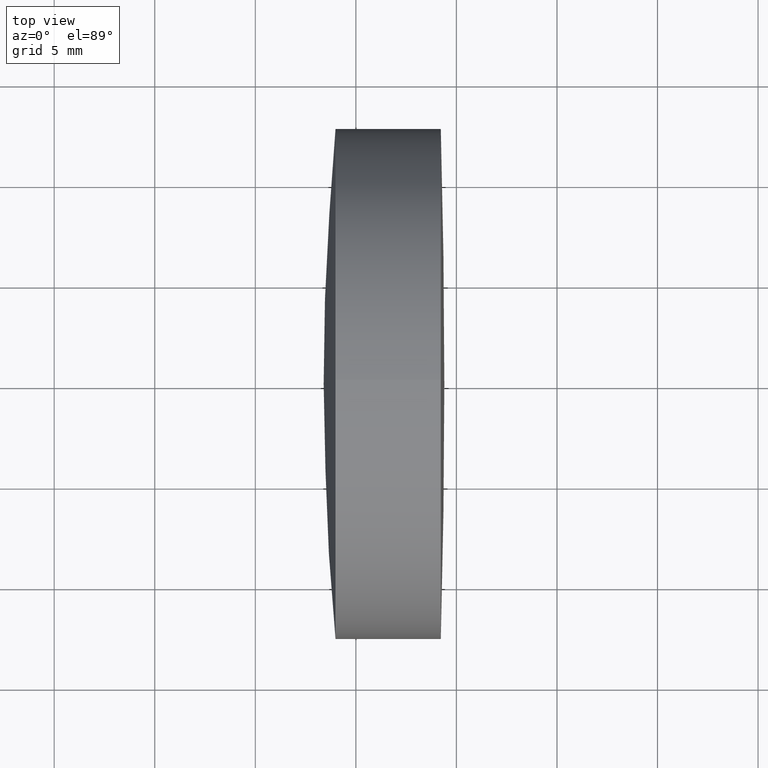
[diagram: clean part render]
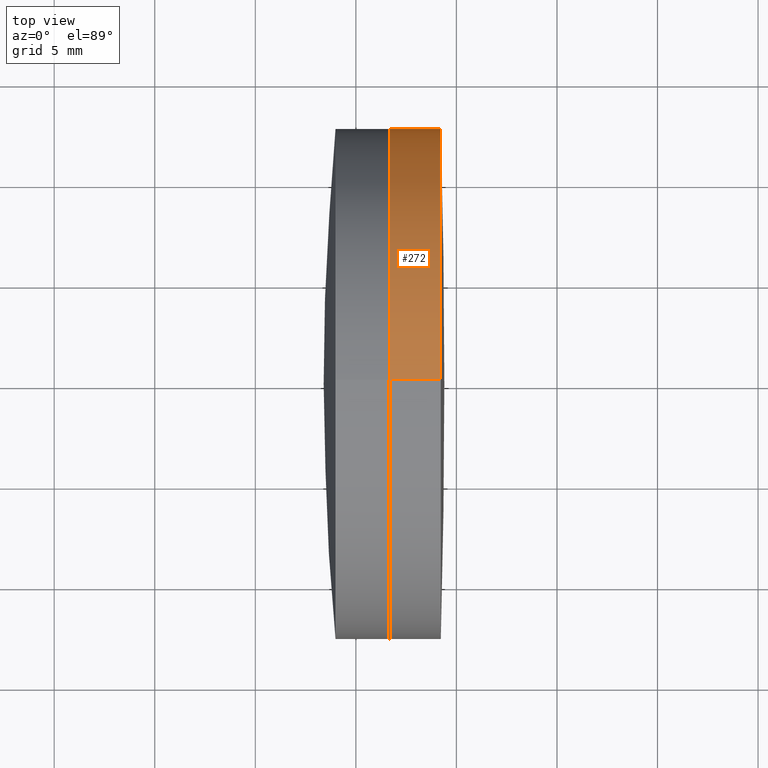
[diagram: same view with one face highlighted and labeled with its STEP entity id]
A machine part, top view. The second image highlights one B-rep face of the part: STEP entity #272.
In plain terms, the highlighted cylindrical surface (partial cylindrical patch) has radius 12.7 mm, axis along (-1, -0, -0).
Its self-contained STEP definition (entity closure, byte-faithful):
#25 = VECTOR ( 'NONE', #318, 1000.000000000000000 ) ;
#37 = DIRECTION ( 'NONE',  ( -1.000000000000000000, -0.0000000000000000000, -0.0000000000000000000 ) ) ;
#39 = AXIS2_PLACEMENT_3D ( 'NONE', #131, #320, #42 ) ;
#42 = DIRECTION ( 'NONE',  ( 0.0000000000000000000, 0.0000000000000000000, 1.000000000000000000 ) ) ;
#48 = ORIENTED_EDGE ( 'NONE', *, *, #52, .T. ) ;
#52 = EDGE_CURVE ( 'NONE', #158, #199, #299, .T. ) ;
#75 = CARTESIAN_POINT ( 'NONE',  ( 291.6738128087178000, 0.0000000000000000000, 12.69999999999998700 ) ) ;
#92 = VERTEX_POINT ( 'NONE', #108 ) ;
#93 = LINE ( 'NONE', #344, #25 ) ;
#99 = DIRECTION ( 'NONE',  ( 0.0000000000000000000, 0.0000000000000000000, 1.000000000000000000 ) ) ;
#108 = CARTESIAN_POINT ( 'NONE',  ( 294.2237933026709700, 0.0000000000000000000, 12.69999999999995500 ) ) ;
#111 = CYLINDRICAL_SURFACE ( 'NONE', #314, 12.69999999999997100 ) ;
#115 = ORIENTED_EDGE ( 'NONE', *, *, #249, .T. ) ;
#127 = FACE_OUTER_BOUND ( 'NONE', #264, .T. ) ;
#131 = CARTESIAN_POINT ( 'NONE',  ( 291.6738128087178000, 0.0000000000000000000, 0.0000000000000000000 ) ) ;
#139 = VECTOR ( 'NONE', #190, 1000.000000000000000 ) ;
#144 = EDGE_CURVE ( 'NONE', #324, #199, #225, .T. ) ;
#158 = VERTEX_POINT ( 'NONE', #196 ) ;
#178 = ORIENTED_EDGE ( 'NONE', *, *, #202, .F. ) ;
#190 = DIRECTION ( 'NONE',  ( -1.000000000000000000, -0.0000000000000000000, -0.0000000000000000000 ) ) ;
#195 = ORIENTED_EDGE ( 'NONE', *, *, #144, .F. ) ;
#196 = CARTESIAN_POINT ( 'NONE',  ( 294.2237933026709700, 1.555301434917134100E-015, -12.69999999999995500 ) ) ;
#199 = VERTEX_POINT ( 'NONE', #293 ) ;
#202 = EDGE_CURVE ( 'NONE', #92, #324, #93, .T. ) ;
#210 = CARTESIAN_POINT ( 'NONE',  ( 294.2237933026709700, 0.0000000000000000000, 0.0000000000000000000 ) ) ;
#225 = CIRCLE ( 'NONE', #39, 12.69999999999998900 ) ;
#227 = DIRECTION ( 'NONE',  ( -1.000000000000000000, -0.0000000000000000000, -0.0000000000000000000 ) ) ;
#245 = CARTESIAN_POINT ( 'NONE',  ( -0.5519199926577972300, 1.555301434917135100E-015, -12.69999999999997100 ) ) ;
#249 = EDGE_CURVE ( 'NONE', #92, #158, #333, .T. ) ;
#264 = EDGE_LOOP ( 'NONE', ( #115, #48, #195, #178 ) ) ;
#272 = ADVANCED_FACE ( 'NONE', ( #127 ), #111, .T. ) ;
#279 = DIRECTION ( 'NONE',  ( 0.0000000000000000000, 0.0000000000000000000, 1.000000000000000000 ) ) ;
#293 = CARTESIAN_POINT ( 'NONE',  ( 291.6738128087178000, 1.555301434917137100E-015, -12.69999999999998900 ) ) ;
#294 = CARTESIAN_POINT ( 'NONE',  ( -0.5519199926577972300, 0.0000000000000000000, 0.0000000000000000000 ) ) ;
#299 = LINE ( 'NONE', #245, #139 ) ;
#304 = AXIS2_PLACEMENT_3D ( 'NONE', #210, #227, #279 ) ;
#314 = AXIS2_PLACEMENT_3D ( 'NONE', #294, #37, #99 ) ;
#318 = DIRECTION ( 'NONE',  ( -1.000000000000000000, -0.0000000000000000000, -0.0000000000000000000 ) ) ;
#320 = DIRECTION ( 'NONE',  ( -1.000000000000000000, -0.0000000000000000000, -0.0000000000000000000 ) ) ;
#324 = VERTEX_POINT ( 'NONE', #75 ) ;
#333 = CIRCLE ( 'NONE', #304, 12.69999999999995500 ) ;
#344 = CARTESIAN_POINT ( 'NONE',  ( -0.5519199926577972300, 0.0000000000000000000, 12.69999999999997100 ) ) ;